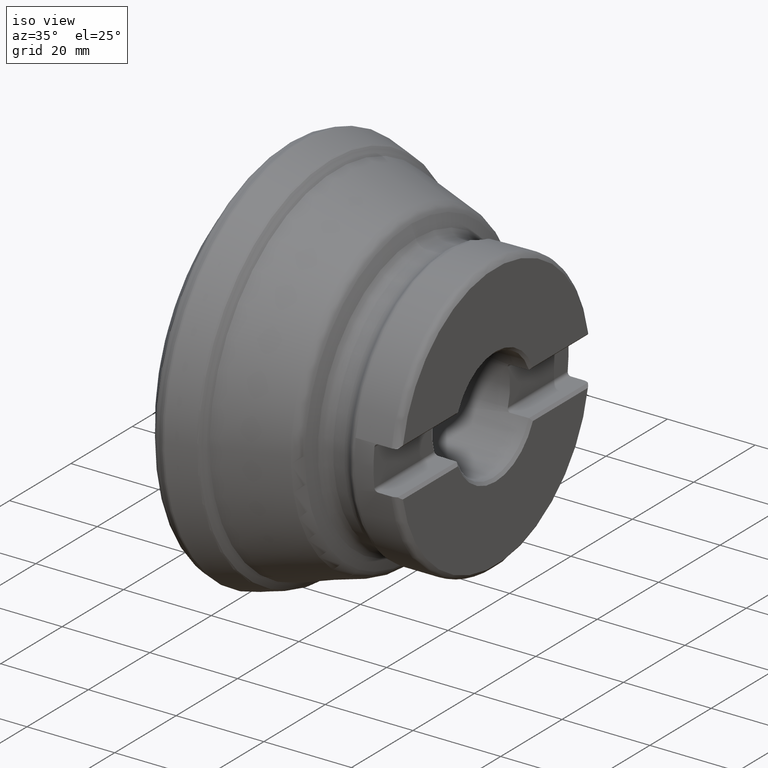
[diagram: clean part render]
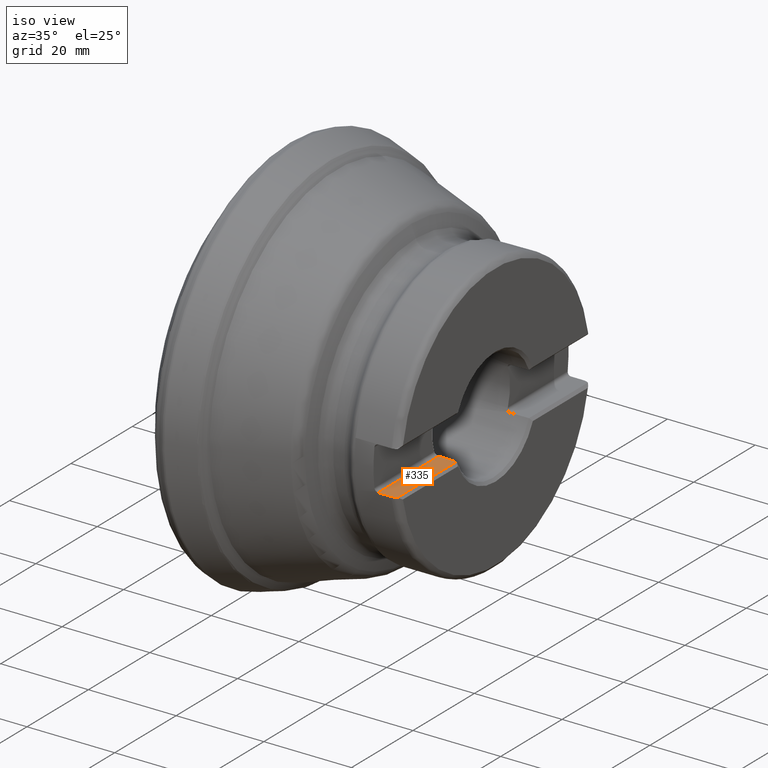
[diagram: same view with one face highlighted and labeled with its STEP entity id]
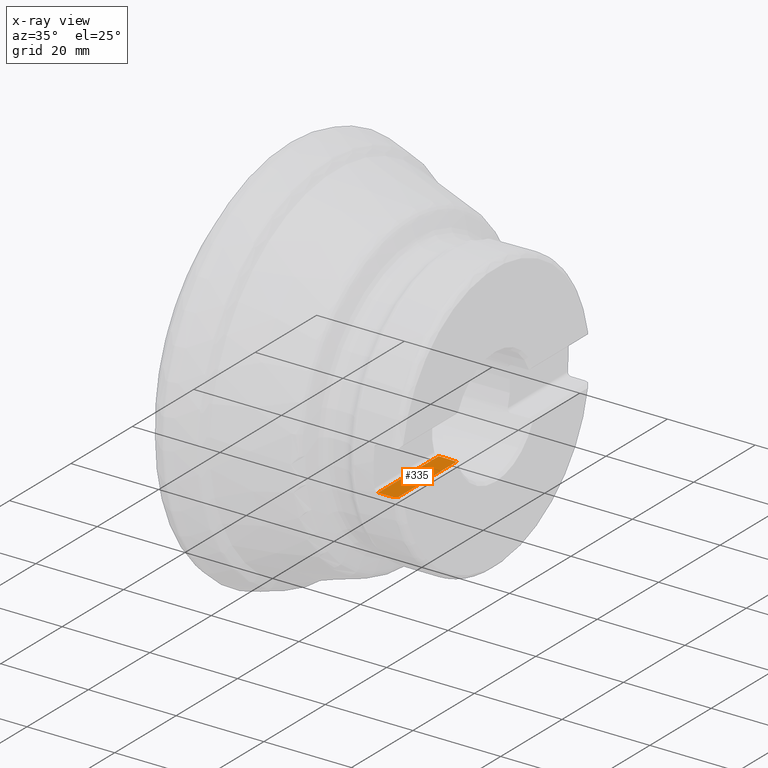
[diagram: x-ray of the same camera — body ghosted, the highlighted face saturated]
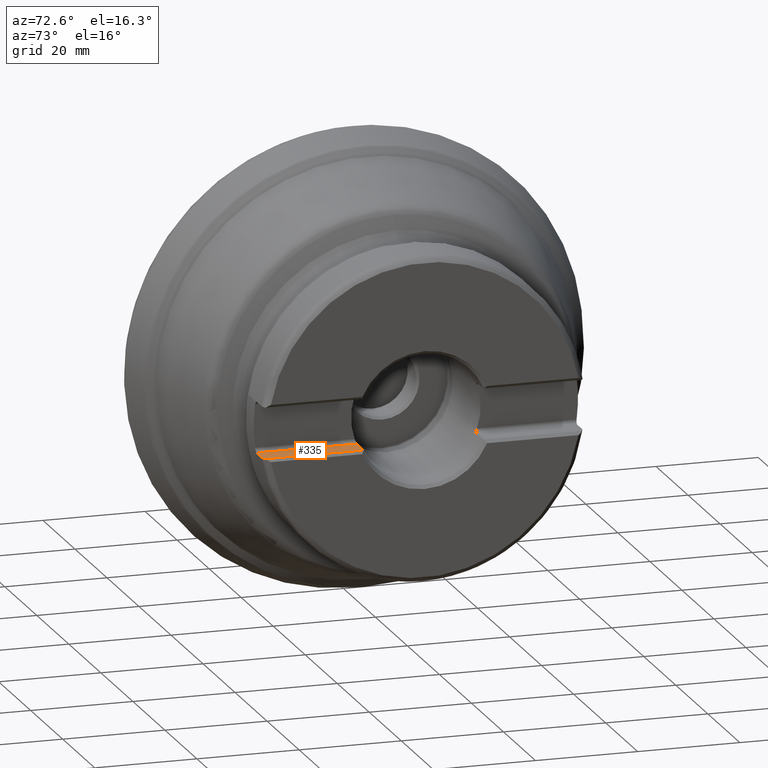
[diagram: same view with one face highlighted and labeled with its STEP entity id]
A machine part, iso view. The second image highlights one B-rep face of the part: STEP entity #335.
The next image is the same camera in x-ray: the body ghosted, the highlighted face saturated — about 0% of this face is hidden behind the body in this view.
A second angle (auxiliary view) of the same face is appended — the face is thin or edge-on in the first view.
In plain terms, the highlighted planar face has unit normal (-0, -0, 1).
Its self-contained STEP definition (entity closure, byte-faithful):
#163=PLANE('',#1074);
#185=LINE('',#1490,#209);
#197=LINE('',#1617,#221);
#203=LINE('',#1705,#227);
#204=LINE('',#1715,#228);
#209=VECTOR('',#1157,1.);
#221=VECTOR('',#1221,1.);
#227=VECTOR('',#1237,1.);
#228=VECTOR('',#1238,1.);
#335=ADVANCED_FACE('',(#403),#163,.T.);
#403=FACE_OUTER_BOUND('',#441,.T.);
#441=EDGE_LOOP('',(#644,#645,#646,#647,#648,#649));
#525=B_SPLINE_CURVE_WITH_KNOTS('',3,(#1410,#1411,#1412,#1413,#1414,#1415,
#1416,#1417,#1418,#1419),.UNSPECIFIED.,.F.,.F.,(4,3,3,4),(0.,0.111779365909649,
0.630963253856081,1.),.UNSPECIFIED.);
#541=B_SPLINE_CURVE_WITH_KNOTS('',3,(#1707,#1708,#1709,#1710,#1711,#1712,
#1713),.UNSPECIFIED.,.F.,.F.,(4,3,4),(0.,0.394551960088621,1.),
 .UNSPECIFIED.);
#644=ORIENTED_EDGE('',*,*,#873,.F.);
#645=ORIENTED_EDGE('',*,*,#926,.T.);
#646=ORIENTED_EDGE('',*,*,#927,.T.);
#647=ORIENTED_EDGE('',*,*,#928,.T.);
#648=ORIENTED_EDGE('',*,*,#915,.T.);
#649=ORIENTED_EDGE('',*,*,#884,.T.);
#787=VERTEX_POINT('',#1409);
#788=VERTEX_POINT('',#1420);
#798=VERTEX_POINT('',#1491);
#823=VERTEX_POINT('',#1618);
#829=VERTEX_POINT('',#1706);
#830=VERTEX_POINT('',#1714);
#873=EDGE_CURVE('',#787,#788,#525,.T.);
#884=EDGE_CURVE('',#798,#788,#185,.T.);
#915=EDGE_CURVE('',#823,#798,#197,.T.);
#926=EDGE_CURVE('',#787,#829,#203,.T.);
#927=EDGE_CURVE('',#829,#830,#541,.T.);
#928=EDGE_CURVE('',#830,#823,#204,.T.);
#1074=AXIS2_PLACEMENT_3D('',#1716,#1239,#1240);
#1157=DIRECTION('',(1.,0.,0.));
#1221=DIRECTION('',(1.4432899320127E-15,-1.,-4.37905770101505E-47));
#1237=DIRECTION('',(0.,1.,3.38212701279084E-31));
#1238=DIRECTION('',(-1.,-1.4432899320127E-15,6.66952178715043E-31));
#1239=DIRECTION('',(-2.34334553146531E-16,-3.38212701279084E-31,1.));
#1240=DIRECTION('',(-1.,-1.4432899320127E-15,-2.34187669256869E-16));
#1409=CARTESIAN_POINT('',(50.1999999999999,-30.9543417794661,-4.96499999999999));
#1410=CARTESIAN_POINT('',(50.1999999999999,-30.9543417794661,-4.96499999999999));
#1411=CARTESIAN_POINT('',(50.1615264027528,-30.9835658043773,-4.96499999999999));
#1412=CARTESIAN_POINT('',(50.1219678125015,-31.011414012584,-4.96499999999999));
#1413=CARTESIAN_POINT('',(50.0814775653602,-31.0377730945782,-4.96499999999999));
#1414=CARTESIAN_POINT('',(49.8954457304282,-31.1588795025826,-4.96499999999999));
#1415=CARTESIAN_POINT('',(49.6860509900234,-31.2497393701952,-4.96499999999999));
#1416=CARTESIAN_POINT('',(49.4704506928959,-31.3025703984495,-4.96499999999999));
#1417=CARTESIAN_POINT('',(49.3170330943653,-31.340164082645,-4.96499999999999));
#1418=CARTESIAN_POINT('',(49.1579564643504,-31.3593889449447,-4.96499999999999));
#1419=CARTESIAN_POINT('',(48.9999999999993,-31.3593889449447,-4.96499999999999));
#1420=CARTESIAN_POINT('',(48.9999999999993,-31.3593889449447,-4.96499999999999));
#1490=CARTESIAN_POINT('',(6.,-31.3593889449396,-4.965));
#1491=CARTESIAN_POINT('',(46.04,-31.3593889449396,-4.96499999999999));
#1617=CARTESIAN_POINT('',(46.0399999999999,48.0000000000001,-4.96499999999999));
#1618=CARTESIAN_POINT('',(46.04,-11.6892589585482,-4.96499999999999));
#1705=CARTESIAN_POINT('',(50.1999999999999,48.0000000000001,-4.96499999999999));
#1706=CARTESIAN_POINT('',(50.1999999999999,-11.7802456807413,-4.96499999999999));
#1707=CARTESIAN_POINT('',(50.1999999999999,-11.7802456807413,-4.96499999999999));
#1708=CARTESIAN_POINT('',(49.7791443764637,-11.7682863618734,-4.96499999999999));
#1709=CARTESIAN_POINT('',(49.3582888309171,-11.7563242981847,-4.96499999999999));
#1710=CARTESIAN_POINT('',(48.9374333641315,-11.7443594644414,-4.96499999999999));
#1711=CARTESIAN_POINT('',(48.2916220564037,-11.7259991827383,-4.96499999999999));
#1712=CARTESIAN_POINT('',(47.6458109340813,-11.707632378327,-4.96499999999999));
#1713=CARTESIAN_POINT('',(47.,-11.6892589585482,-4.96499999999999));
#1714=CARTESIAN_POINT('',(47.,-11.6892589585482,-4.96499999999999));
#1715=CARTESIAN_POINT('',(51.,-11.6892589585482,-4.96499999999999));
#1716=CARTESIAN_POINT('',(60.045528699748,48.0000000000001,-4.96499999999999));